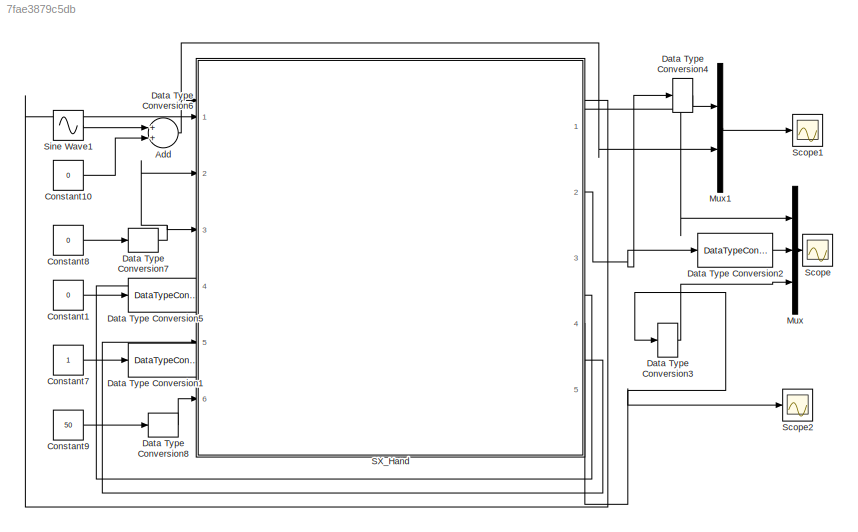
MODEL slx_7fae3879c5db
KIND model
BLOCK [Sum] Add
  InputSameDT = off
  OutDataTypeStr = Inherit: Inherit via internal rule
  Ports = [2, 1]
  SaturateOnIntegerOverflow = off
BLOCK [Constant] Constant1
  Value = 0
BLOCK [Constant] Constant10
  Value = 0
BLOCK [Constant] Constant7
BLOCK [Constant] Constant8
  Value = 0
BLOCK [Constant] Constant9
  Value = 50
BLOCK [DataTypeConversion] Data Type Conversion1
  OutDataTypeStr = boolean
  RndMeth = Floor
  SaturateOnIntegerOverflow = off
BLOCK [DataTypeConversion] Data Type Conversion2
  RndMeth = Floor
  SaturateOnIntegerOverflow = off
BLOCK [DataTypeConversion] Data Type Conversion3
  RndMeth = Floor
  SaturateOnIntegerOverflow = off
BLOCK [DataTypeConversion] Data Type Conversion4
  RndMeth = Floor
  SaturateOnIntegerOverflow = off
BLOCK [DataTypeConversion] Data Type Conversion5
  OutDataTypeStr = boolean
  RndMeth = Floor
  SaturateOnIntegerOverflow = off
BLOCK [DataTypeConversion] Data Type Conversion6
  OutDataTypeStr = int32
  RndMeth = Floor
  SaturateOnIntegerOverflow = off
BLOCK [DataTypeConversion] Data Type Conversion7
  OutDataTypeStr = int32
  RndMeth = Floor
  SaturateOnIntegerOverflow = off
BLOCK [DataTypeConversion] Data Type Conversion8
  OutDataTypeStr = int32
  RndMeth = Floor
  SaturateOnIntegerOverflow = off
BLOCK [Mux] Mux
  DisplayOption = bar
  Inputs = 3
  Ports = [3, 1]
BLOCK [Mux] Mux1
  DisplayOption = bar
  Inputs = 2
  Ports = [2, 1]
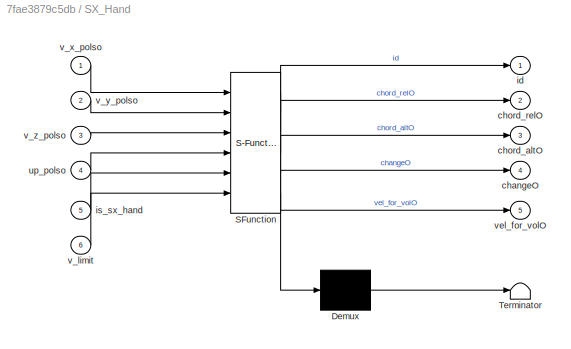
BLOCK [SubSystem] SX_Hand
  ErrorFcn = Stateflow.Translate.translate
  PermitHierarchicalResolution = ExplicitOnly
  Ports = [6, 5]
  RequestExecContextInheritance = off
  SFBlockType = Chart
  TreatAsAtomicUnit = on
BLOCK [Demux] SX_Hand/ Demux 
  Outputs = 1
  Ports = [1, 1]
BLOCK [S-Function] SX_Hand/ SFunction 
  EnableBusSupport = on
  FunctionName = sf_sfun
  PortCounts = [6 6]
  Ports = [6, 6]
  Tag = Stateflow S-Function SX_Hand 3
BLOCK [Terminator] SX_Hand/ Terminator 
BLOCK [Outport] SX_Hand/changeO
  IconDisplay = Port number
  Port = 4
BLOCK [Outport] SX_Hand/chord_altO
  IconDisplay = Port number
  Port = 3
BLOCK [Outport] SX_Hand/chord_relO
  IconDisplay = Port number
  Port = 2
BLOCK [Outport] SX_Hand/id
  IconDisplay = Port number
BLOCK [Inport] SX_Hand/is_sx_hand
  IconDisplay = Port number
  Port = 5
BLOCK [Inport] SX_Hand/up_polso
  IconDisplay = Port number
  Port = 4
BLOCK [Inport] SX_Hand/v_limit
  IconDisplay = Port number
  Port = 6
BLOCK [Inport] SX_Hand/v_x_polso
  IconDisplay = Port number
BLOCK [Inport] SX_Hand/v_y_polso
  IconDisplay = Port number
  Port = 2
BLOCK [Inport] SX_Hand/v_z_polso
  IconDisplay = Port number
  Port = 3
BLOCK [Outport] SX_Hand/vel_for_volO
  IconDisplay = Port number
  Port = 5
BLOCK [Scope] Scope
  DataFormat = StructureWithTime
  Floating = off
  NumInputPorts = 1
  Ports = [1]
  SampleTime = 0
  ShowLegends = off
  YMax = 17000
  YMin = 0
BLOCK [Scope] Scope1
  DataFormat = StructureWithTime
  Floating = off
  NumInputPorts = 1
  Ports = [1]
  SampleTime = 0
  SaveName = ScopeData1
  ShowLegends = off
  TimeRange = 20
  YMax = 6
  YMin = -6
BLOCK [Scope] Scope2
  DataFormat = StructureWithTime
  Floating = off
  NumInputPorts = 1
  Ports = [1]
  SampleTime = 0
  SaveName = ScopeData2
  ShowLegends = off
  YMax = 17000
  YMin = 0
BLOCK [Sin] Sine Wave1
  Amplitude = 100
  Frequency = 0.5
  Ports = [0, 1]
  SampleTime = 0
NET Add:1 -> Data Type Conversion6:1, Mux1:2
LINE Constant10:1 -> Add:2
LINE Constant1:1 -> Data Type Conversion5:1
LINE Constant7:1 -> Data Type Conversion1:1
LINE Constant8:1 -> Data Type Conversion7:1
LINE Constant9:1 -> Data Type Conversion8:1
LINE Data Type Conversion1:1 -> SX_Hand:5
LINE Data Type Conversion2:1 -> Mux:2
LINE Data Type Conversion3:1 -> Mux:3
LINE Data Type Conversion4:1 -> Mux1:1
LINE Data Type Conversion5:1 -> SX_Hand:4
LINE Data Type Conversion6:1 -> SX_Hand:1
NET Data Type Conversion7:1 -> SX_Hand:2, SX_Hand:3
LINE Data Type Conversion8:1 -> SX_Hand:6
LINE Mux1:1 -> Scope1:1
LINE Mux:1 -> Scope:1
LINE SX_Hand:1 -> Mux:1
NET SX_Hand:2 -> Data Type Conversion2:1, Data Type Conversion4:1
NET SX_Hand:4 -> Data Type Conversion3:1, Scope2:1
LINE Sine Wave1:1 -> Add:1
note: NET lines group one-source signal fan-out (src -> all destinations, sorted); 1:1 wires keep LINE
